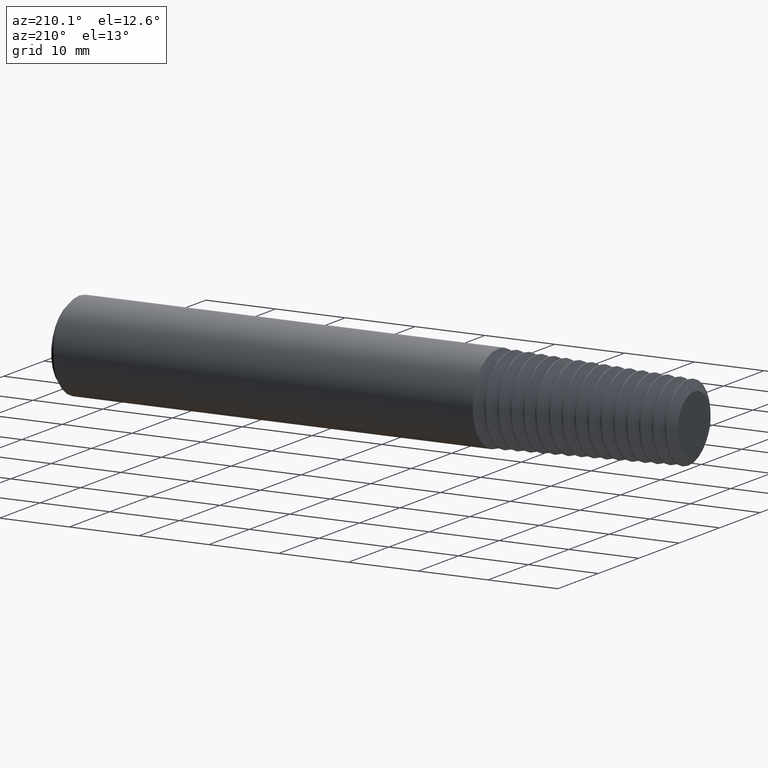
[diagram: clean part render]
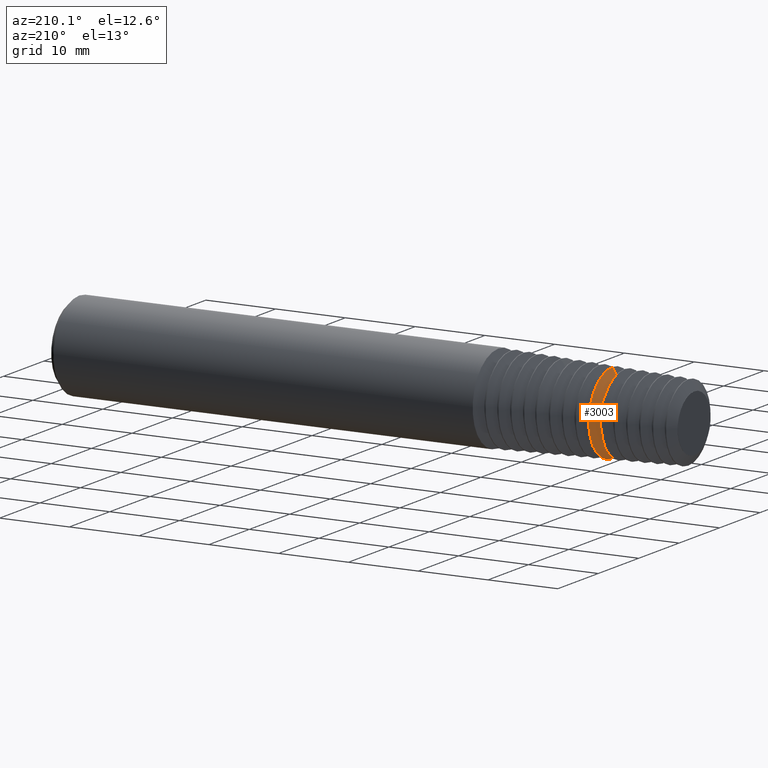
[diagram: same view with one face highlighted and labeled with its STEP entity id]
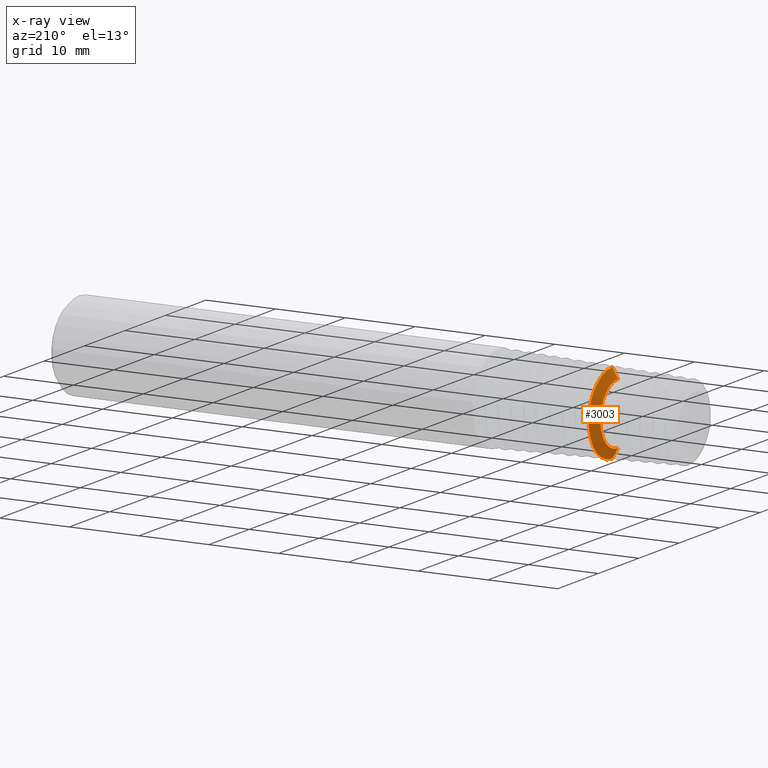
[diagram: x-ray of the same camera — body ghosted, the highlighted face saturated]
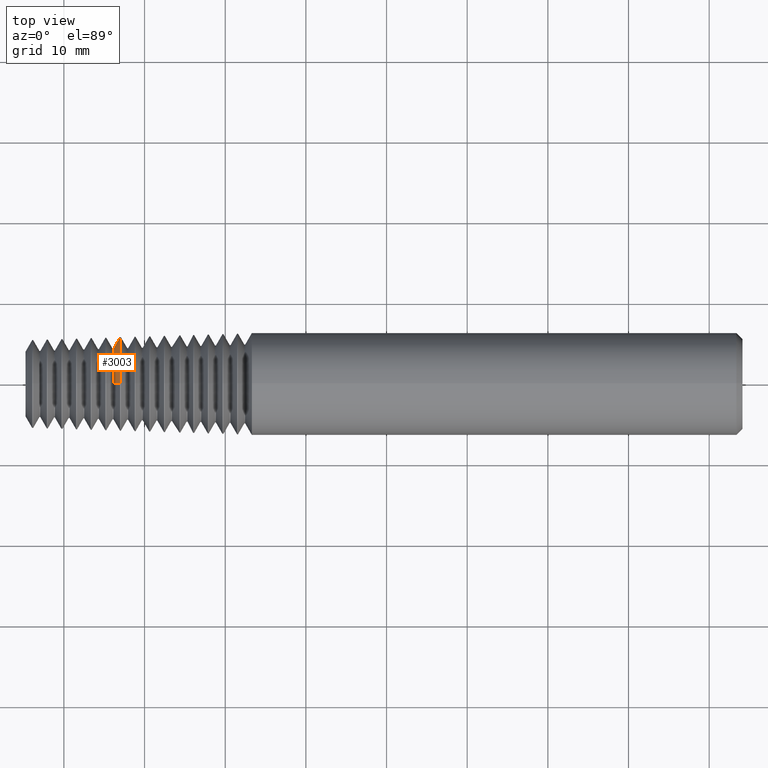
[diagram: same view with one face highlighted and labeled with its STEP entity id]
A machine part, auxiliary view. The second image highlights one B-rep face of the part: STEP entity #3003.
The next image is the same camera in x-ray: the body ghosted, the highlighted face saturated — about 0% of this face is hidden behind the body in this view.
A second angle (top view) of the same face is appended — the face is thin or edge-on in the first view.
In plain terms, the highlighted conical surface has half-angle 60.258 deg.
Its self-contained STEP definition (entity closure, byte-faithful):
#133 = ORIENTED_EDGE ( 'NONE', *, *, #1224, .T. ) ;
#142 = AXIS2_PLACEMENT_3D ( 'NONE', #2307, #1025, #2021 ) ;
#198 = CARTESIAN_POINT ( 'NONE',  ( -0.5454285713134846558, 0.0000000000000000000, -0.1731392150050981571 ) ) ;
#287 = CONICAL_SURFACE ( 'NONE', #142, 0.2293436113482184013, 1.051692168861715126 ) ;
#339 = ORIENTED_EDGE ( 'NONE', *, *, #1941, .T. ) ;
#538 = LINE ( 'NONE', #1700, #1484 ) ;
#603 = FACE_OUTER_BOUND ( 'NONE', #2936, .T. ) ;
#705 = EDGE_CURVE ( 'NONE', #2975, #711, #2267, .T. ) ;
#711 = VERTEX_POINT ( 'NONE', #1702 ) ;
#908 = CARTESIAN_POINT ( 'NONE',  ( -0.5454285713134846558, 2.120343854628788315E-17, 0.1731392150050981571 ) ) ;
#1025 = DIRECTION ( 'NONE',  ( 1.000000000000000000, -0.0000000000000000000, -0.0000000000000000000 ) ) ;
#1224 = EDGE_CURVE ( 'NONE', #1254, #711, #538, .T. ) ;
#1254 = VERTEX_POINT ( 'NONE', #908 ) ;
#1321 = ORIENTED_EDGE ( 'NONE', *, *, #705, .F. ) ;
#1484 = VECTOR ( 'NONE', #2457, 39.37007874015748143 ) ;
#1664 = DIRECTION ( 'NONE',  ( 1.000000000000000000, -0.0000000000000000000, -0.0000000000000000000 ) ) ;
#1700 = CARTESIAN_POINT ( 'NONE',  ( -0.5133149014587933268, 2.808649195424902882E-17, 0.2293436113482184013 ) ) ;
#1702 = CARTESIAN_POINT ( 'NONE',  ( -0.5133149014587933268, 2.808649195424902882E-17, 0.2293436113482184013 ) ) ;
#1897 = AXIS2_PLACEMENT_3D ( 'NONE', #2470, #1664, #3245 ) ;
#1941 = EDGE_CURVE ( 'NONE', #2411, #1254, #2433, .T. ) ;
#2021 = DIRECTION ( 'NONE',  ( 0.0000000000000000000, 0.0000000000000000000, -1.000000000000000000 ) ) ;
#2091 = DIRECTION ( 'NONE',  ( 1.000000000000000000, -0.0000000000000000000, -0.0000000000000000000 ) ) ;
#2118 = DIRECTION ( 'NONE',  ( 0.0000000000000000000, 0.0000000000000000000, -1.000000000000000000 ) ) ;
#2267 = CIRCLE ( 'NONE', #1897, 0.2293436113482184013 ) ;
#2274 = LINE ( 'NONE', #2533, #3139 ) ;
#2281 = ORIENTED_EDGE ( 'NONE', *, *, #3268, .F. ) ;
#2307 = CARTESIAN_POINT ( 'NONE',  ( -0.5133149014587933268, 0.0000000000000000000, 0.0000000000000000000 ) ) ;
#2411 = VERTEX_POINT ( 'NONE', #198 ) ;
#2433 = CIRCLE ( 'NONE', #2460, 0.1731392150050981571 ) ;
#2457 = DIRECTION ( 'NONE',  ( 0.4961025096388322897, 1.063316676393122587E-16, 0.8682639575210134852 ) ) ;
#2460 = AXIS2_PLACEMENT_3D ( 'NONE', #2847, #2091, #2118 ) ;
#2470 = CARTESIAN_POINT ( 'NONE',  ( -0.5133149014587933268, 0.0000000000000000000, 0.0000000000000000000 ) ) ;
#2533 = CARTESIAN_POINT ( 'NONE',  ( -0.5133149014587933268, 0.0000000000000000000, -0.2293436113482184013 ) ) ;
#2792 = DIRECTION ( 'NONE',  ( 0.4961025096388322897, 0.0000000000000000000, -0.8682639575210134852 ) ) ;
#2847 = CARTESIAN_POINT ( 'NONE',  ( -0.5454285713134846558, 0.0000000000000000000, 0.0000000000000000000 ) ) ;
#2936 = EDGE_LOOP ( 'NONE', ( #339, #133, #1321, #2281 ) ) ;
#2975 = VERTEX_POINT ( 'NONE', #3033 ) ;
#3003 = ADVANCED_FACE ( 'NONE', ( #603 ), #287, .T. ) ;
#3033 = CARTESIAN_POINT ( 'NONE',  ( -0.5133149014587933268, 0.0000000000000000000, -0.2293436113482184013 ) ) ;
#3139 = VECTOR ( 'NONE', #2792, 39.37007874015748143 ) ;
#3245 = DIRECTION ( 'NONE',  ( 0.0000000000000000000, 0.0000000000000000000, -1.000000000000000000 ) ) ;
#3268 = EDGE_CURVE ( 'NONE', #2411, #2975, #2274, .T. ) ;